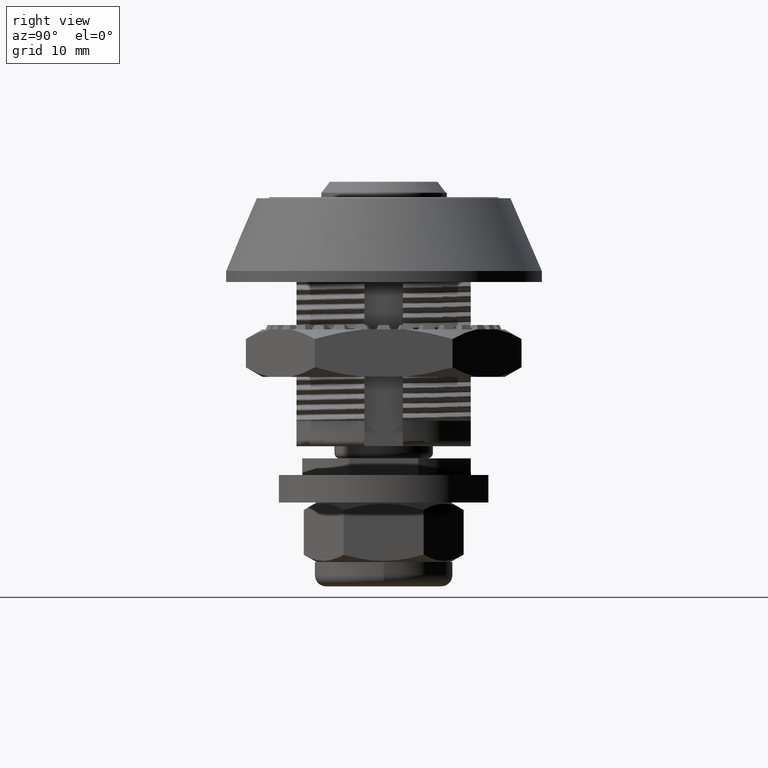
[diagram: clean part render]
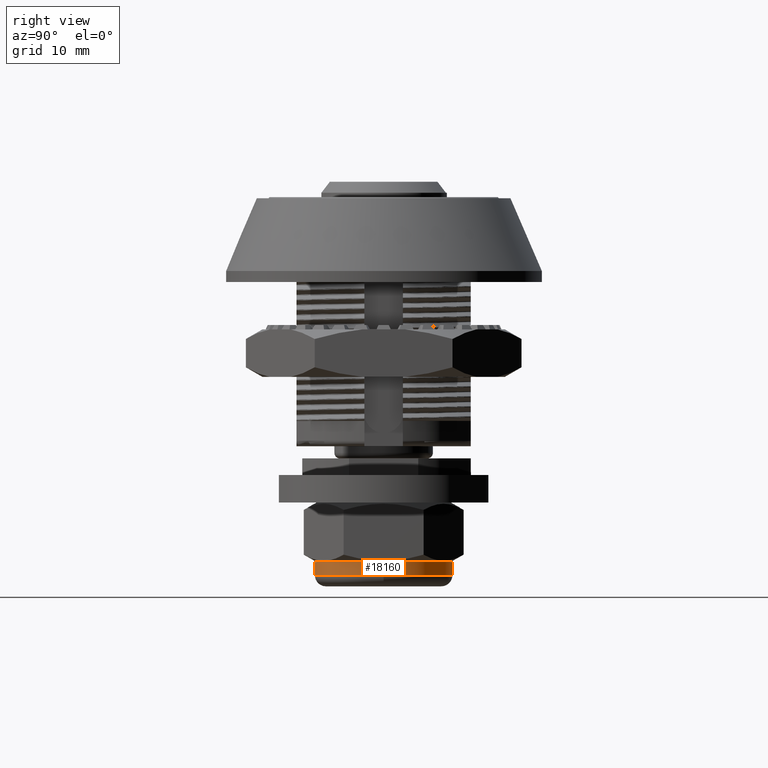
[diagram: same view with one face highlighted and labeled with its STEP entity id]
A machine part, right view. The second image highlights one B-rep face of the part: STEP entity #18160.
In plain terms, the highlighted cylindrical surface (bore or boss wall) has radius 6.2787 mm, axis along (0, 0, 1).
Its self-contained STEP definition (entity closure, byte-faithful):
#2649=CYLINDRICAL_SURFACE('',#18771,6.27868417743718);
#4588=FACE_BOUND('',#6482,.T.);
#5444=FACE_OUTER_BOUND('',#6481,.T.);
#6481=EDGE_LOOP('',(#16357));
#6482=EDGE_LOOP('',(#16358));
#6843=CIRCLE('',#18770,6.27868417743718);
#6844=CIRCLE('',#18772,6.27868417743718);
#8451=VERTEX_POINT('',#52268);
#8452=VERTEX_POINT('',#52271);
#11144=EDGE_CURVE('',#8451,#8451,#6843,.T.);
#11145=EDGE_CURVE('',#8452,#8452,#6844,.T.);
#16357=ORIENTED_EDGE('',*,*,#11145,.T.);
#16358=ORIENTED_EDGE('',*,*,#11144,.T.);
#18160=ADVANCED_FACE('',(#5444,#4588),#2649,.T.);
#18770=AXIS2_PLACEMENT_3D('',#52269,#20180,#20181);
#18771=AXIS2_PLACEMENT_3D('',#52270,#20182,#20183);
#18772=AXIS2_PLACEMENT_3D('',#52272,#20184,#20185);
#20180=DIRECTION('center_axis',(0.,0.,1.));
#20181=DIRECTION('ref_axis',(-1.,0.,0.));
#20182=DIRECTION('center_axis',(0.,0.,1.));
#20183=DIRECTION('ref_axis',(-1.,0.,0.));
#20184=DIRECTION('center_axis',(0.,0.,-1.));
#20185=DIRECTION('ref_axis',(-1.,0.,0.));
#52268=CARTESIAN_POINT('',(6.27868417743718,7.68917048075557E-16,-34.3));
#52269=CARTESIAN_POINT('Origin',(0.,0.,-34.3));
#52270=CARTESIAN_POINT('Origin',(0.,0.,-33.1));
#52271=CARTESIAN_POINT('',(6.27868417743718,7.68917048075557E-16,-33.1));
#52272=CARTESIAN_POINT('Origin',(0.,0.,-33.1));